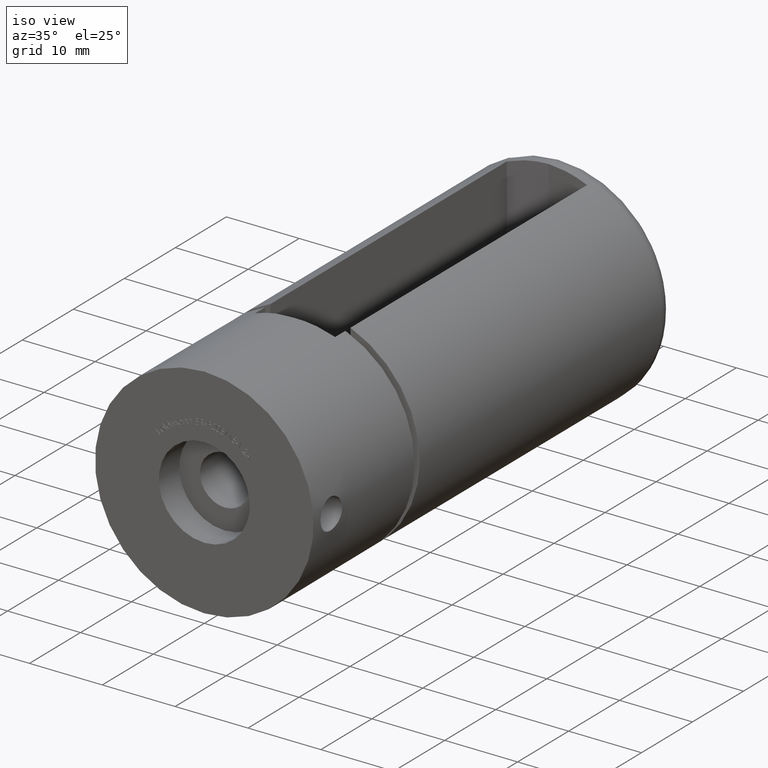
[diagram: clean part render]
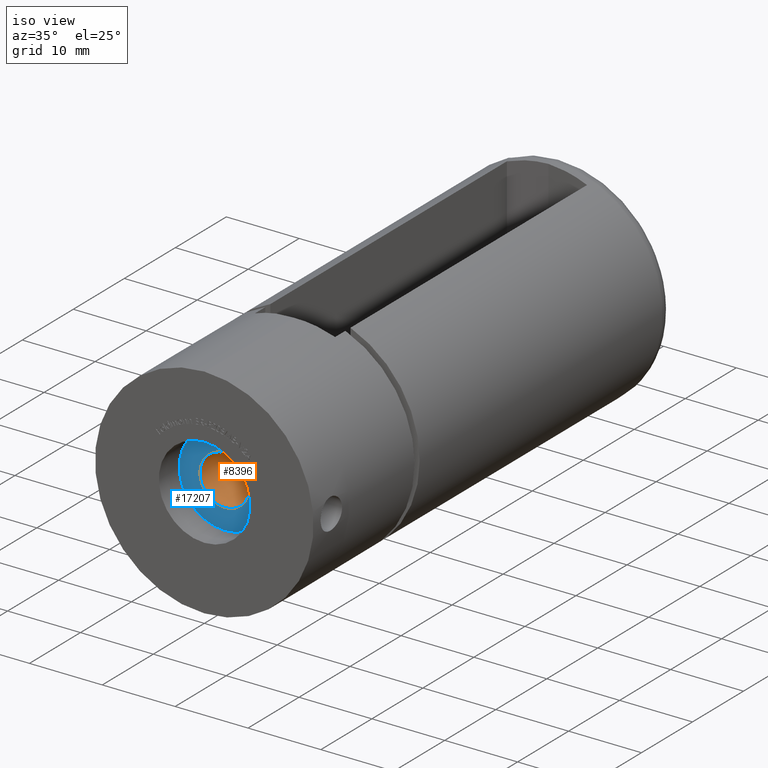
[diagram: same view with the hole feature highlighted: cylindrical wall and planar end face, labeled with their STEP entity ids]
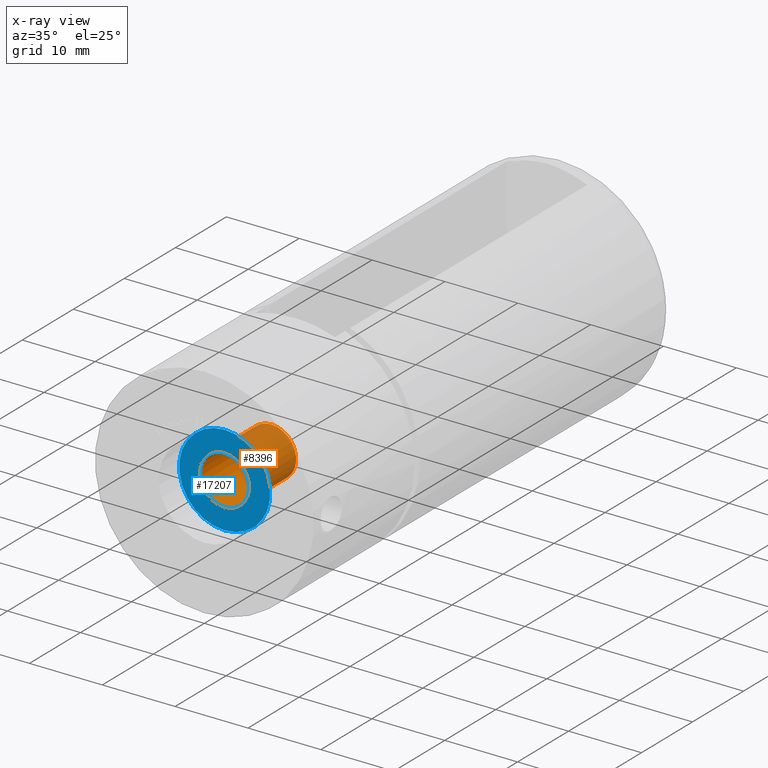
[diagram: x-ray of the same camera — body ghosted, the hole faces saturated]
A machine part, iso view. The highlighted faces form one hole feature of diameter 6.8 mm: the cylindrical wall (entity #8396, orange) and its adjacent planar end face (entity #17207, blue) — they share a circular edge in the B-rep.
The next image is the same camera in x-ray (body ghosted, the hole faces saturated) — the bore reads through the body.
Wall:
#938 = CYLINDRICAL_SURFACE ( 'NONE', #9245, 3.399999999999997700 ) ;
#1242 = CIRCLE ( 'NONE', #8287, 3.399999999999997700 ) ;
#1388 = CARTESIAN_POINT ( 'NONE',  ( 0.0000000000000000000, 4.000000000000000000, -3.399999999999998600 ) ) ;
#1995 = DIRECTION ( 'NONE',  ( -0.0000000000000000000, -1.000000000000000000, -0.0000000000000000000 ) ) ;
#4075 = EDGE_CURVE ( 'NONE', #10421, #10421, #4842, .T. ) ;
#4163 = EDGE_CURVE ( 'NONE', #7113, #7113, #1242, .T. ) ;
#4519 = FACE_OUTER_BOUND ( 'NONE', #16276, .T. ) ;
#4744 = DIRECTION ( 'NONE',  ( 0.0000000000000000000, 0.0000000000000000000, 1.000000000000000000 ) ) ;
#4842 = CIRCLE ( 'NONE', #8395, 3.399999999999998600 ) ;
#6197 = DIRECTION ( 'NONE',  ( 0.0000000000000000000, 0.0000000000000000000, -1.000000000000000000 ) ) ;
#6704 = CARTESIAN_POINT ( 'NONE',  ( 0.0000000000000000000, 4.000000000000000000, 0.0000000000000000000 ) ) ;
#7113 = VERTEX_POINT ( 'NONE', #14892 ) ;
#8206 = ORIENTED_EDGE ( 'NONE', *, *, #4075, .T. ) ;
#8287 = AXIS2_PLACEMENT_3D ( 'NONE', #14001, #15348, #4744 ) ;
#8395 = AXIS2_PLACEMENT_3D ( 'NONE', #6704, #15988, #10744 ) ;
#8396 = ADVANCED_FACE ( 'NONE', ( #11388, #4519 ), #938, .F. ) ;
#9245 = AXIS2_PLACEMENT_3D ( 'NONE', #10077, #1995, #6197 ) ;
#9606 = ORIENTED_EDGE ( 'NONE', *, *, #4163, .F. ) ;
#10077 = CARTESIAN_POINT ( 'NONE',  ( 0.0000000000000000000, 4.000000000000000000, -0.0000000000000000000 ) ) ;
#10421 = VERTEX_POINT ( 'NONE', #1388 ) ;
#10744 = DIRECTION ( 'NONE',  ( 0.0000000000000000000, 0.0000000000000000000, -1.000000000000000000 ) ) ;
#11187 = EDGE_LOOP ( 'NONE', ( #8206 ) ) ;
#11388 = FACE_OUTER_BOUND ( 'NONE', #11187, .T. ) ;
#14001 = CARTESIAN_POINT ( 'NONE',  ( 0.0000000000000000000, 13.15000000000000000, 0.0000000000000000000 ) ) ;
#14892 = CARTESIAN_POINT ( 'NONE',  ( 0.0000000000000000000, 13.15000000000000000, 3.399999999999997700 ) ) ;
#15348 = DIRECTION ( 'NONE',  ( 0.0000000000000000000, -1.000000000000000000, 0.0000000000000000000 ) ) ;
#15988 = DIRECTION ( 'NONE',  ( -0.0000000000000000000, -1.000000000000000000, -0.0000000000000000000 ) ) ;
#16276 = EDGE_LOOP ( 'NONE', ( #9606 ) ) ;
End face:
#1388 = CARTESIAN_POINT ( 'NONE',  ( 0.0000000000000000000, 4.000000000000000000, -3.399999999999998600 ) ) ;
#1450 = DIRECTION ( 'NONE',  ( 0.0000000000000000000, -1.000000000000000000, 0.0000000000000000000 ) ) ;
#1780 = EDGE_CURVE ( 'NONE', #10217, #10217, #6148, .T. ) ;
#1828 = AXIS2_PLACEMENT_3D ( 'NONE', #15316, #12663, #6133 ) ;
#4075 = EDGE_CURVE ( 'NONE', #10421, #10421, #4842, .T. ) ;
#4842 = CIRCLE ( 'NONE', #8395, 3.399999999999998600 ) ;
#5396 = CARTESIAN_POINT ( 'NONE',  ( 0.0000000000000000000, 4.000000000000000000, 0.0000000000000000000 ) ) ;
#5715 = EDGE_LOOP ( 'NONE', ( #13014 ) ) ;
#6133 = DIRECTION ( 'NONE',  ( 0.0000000000000000000, 0.0000000000000000000, -1.000000000000000000 ) ) ;
#6148 = CIRCLE ( 'NONE', #1828, 6.250000000000000000 ) ;
#6473 = FACE_BOUND ( 'NONE', #14215, .T. ) ;
#6704 = CARTESIAN_POINT ( 'NONE',  ( 0.0000000000000000000, 4.000000000000000000, 0.0000000000000000000 ) ) ;
#6816 = CARTESIAN_POINT ( 'NONE',  ( 0.0000000000000000000, 4.000000000000000000, -6.250000000000000000 ) ) ;
#7897 = ORIENTED_EDGE ( 'NONE', *, *, #4075, .F. ) ;
#8395 = AXIS2_PLACEMENT_3D ( 'NONE', #6704, #15988, #10744 ) ;
#9523 = AXIS2_PLACEMENT_3D ( 'NONE', #5396, #1450, #10796 ) ;
#10217 = VERTEX_POINT ( 'NONE', #6816 ) ;
#10421 = VERTEX_POINT ( 'NONE', #1388 ) ;
#10744 = DIRECTION ( 'NONE',  ( 0.0000000000000000000, 0.0000000000000000000, -1.000000000000000000 ) ) ;
#10796 = DIRECTION ( 'NONE',  ( 0.0000000000000000000, -0.0000000000000000000, -1.000000000000000000 ) ) ;
#12663 = DIRECTION ( 'NONE',  ( 0.0000000000000000000, -1.000000000000000000, 0.0000000000000000000 ) ) ;
#13014 = ORIENTED_EDGE ( 'NONE', *, *, #1780, .T. ) ;
#14215 = EDGE_LOOP ( 'NONE', ( #7897 ) ) ;
#14555 = FACE_OUTER_BOUND ( 'NONE', #5715, .T. ) ;
#14659 = PLANE ( 'NONE',  #9523 ) ;
#15316 = CARTESIAN_POINT ( 'NONE',  ( 0.0000000000000000000, 4.000000000000000000, 0.0000000000000000000 ) ) ;
#15988 = DIRECTION ( 'NONE',  ( -0.0000000000000000000, -1.000000000000000000, -0.0000000000000000000 ) ) ;
#17207 = ADVANCED_FACE ( 'NONE', ( #6473, #14555 ), #14659, .T. ) ;